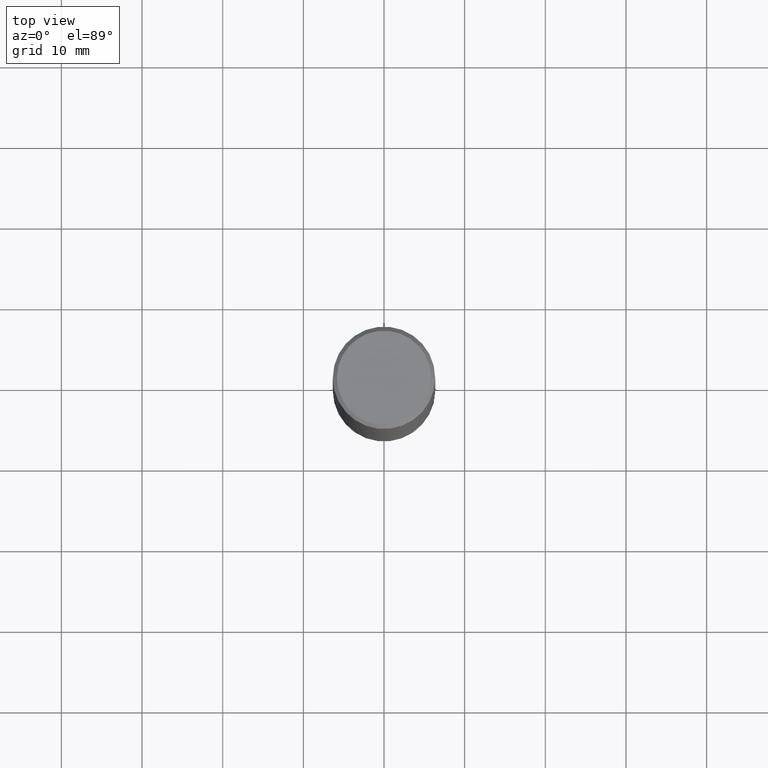
[diagram: clean part render]
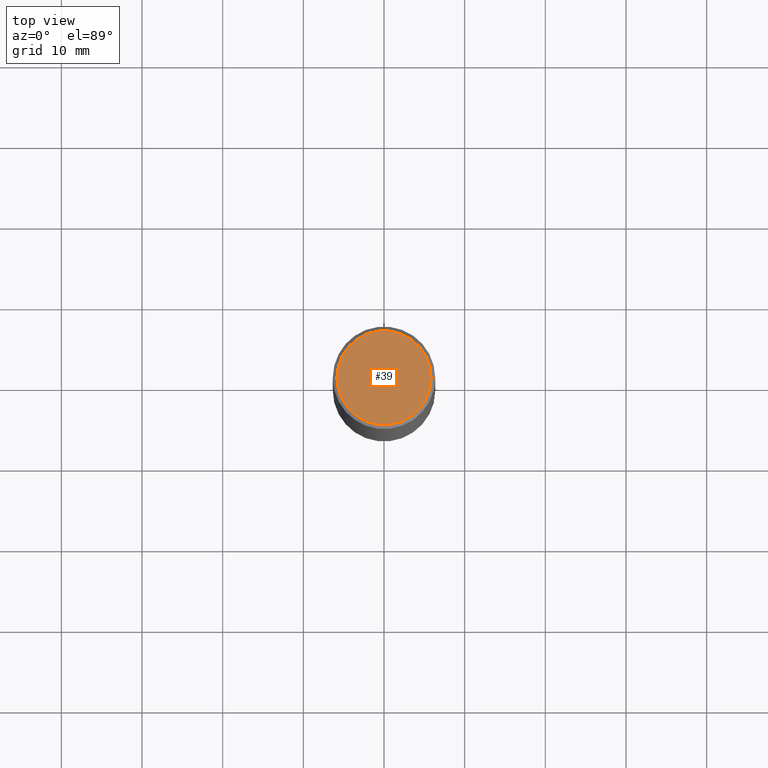
[diagram: same view with one face highlighted and labeled with its STEP entity id]
A machine part, top view. The second image highlights one B-rep face of the part: STEP entity #39.
In plain terms, the highlighted planar face has unit normal (0, -0, -1).
Its self-contained STEP definition (entity closure, byte-faithful):
#1 = DIRECTION ( 'NONE',  ( -1.000000000000000000, 6.982962677686265922E-15, -4.876176775795935793E-29 ) ) ;
#39 = ADVANCED_FACE ( 'NONE', ( #332 ), #279, .F. ) ;
#40 = CIRCLE ( 'NONE', #313, 0.2299999999999997324 ) ;
#41 = ORIENTED_EDGE ( 'NONE', *, *, #96, .T. ) ;
#43 = DIRECTION ( 'NONE',  ( -2.445468806185136597E-29, 3.491481338843145583E-15, 1.000000000000000000 ) ) ;
#69 = AXIS2_PLACEMENT_3D ( 'NONE', #359, #112, #144 ) ;
#81 = VERTEX_POINT ( 'NONE', #261 ) ;
#88 = ORIENTED_EDGE ( 'NONE', *, *, #216, .T. ) ;
#96 = EDGE_CURVE ( 'NONE', #81, #311, #40, .T. ) ;
#112 = DIRECTION ( 'NONE',  ( -2.445468806185136597E-29, 3.491481338843145583E-15, 1.000000000000000000 ) ) ;
#138 = CARTESIAN_POINT ( 'NONE',  ( 1.606081415867839292E-15, 0.2299999999999997324, -8.009064516888723911E-16 ) ) ;
#144 = DIRECTION ( 'NONE',  ( 1.000000000000000000, -6.982962677686266711E-15, 4.876225828469314487E-29 ) ) ;
#178 = CARTESIAN_POINT ( 'NONE',  ( 0.2299999999999997324, -1.681434332853597433E-15, 4.268512490111905999E-18 ) ) ;
#182 = CARTESIAN_POINT ( 'NONE',  ( -1.043851414335219820E-46, 1.490343170380447200E-32, 4.268512490100411279E-18 ) ) ;
#203 = AXIS2_PLACEMENT_3D ( 'NONE', #138, #269, #1 ) ;
#216 = EDGE_CURVE ( 'NONE', #311, #81, #276, .T. ) ;
#261 = CARTESIAN_POINT ( 'NONE',  ( -0.2299999999999997324, 1.640996229256270744E-15, 4.268512490089056766E-18 ) ) ;
#269 = DIRECTION ( 'NONE',  ( 2.438088387897960049E-29, -3.491481338843145188E-15, -1.000000000000000000 ) ) ;
#276 = CIRCLE ( 'NONE', #69, 0.2299999999999997324 ) ;
#279 = PLANE ( 'NONE',  #203 ) ;
#292 = DIRECTION ( 'NONE',  ( 1.000000000000000000, -6.982962677686266711E-15, 4.876225828469314487E-29 ) ) ;
#297 = EDGE_LOOP ( 'NONE', ( #41, #88 ) ) ;
#311 = VERTEX_POINT ( 'NONE', #178 ) ;
#313 = AXIS2_PLACEMENT_3D ( 'NONE', #182, #43, #292 ) ;
#332 = FACE_OUTER_BOUND ( 'NONE', #297, .T. ) ;
#359 = CARTESIAN_POINT ( 'NONE',  ( -1.043851414335219820E-46, 1.490343170380447200E-32, 4.268512490100411279E-18 ) ) ;